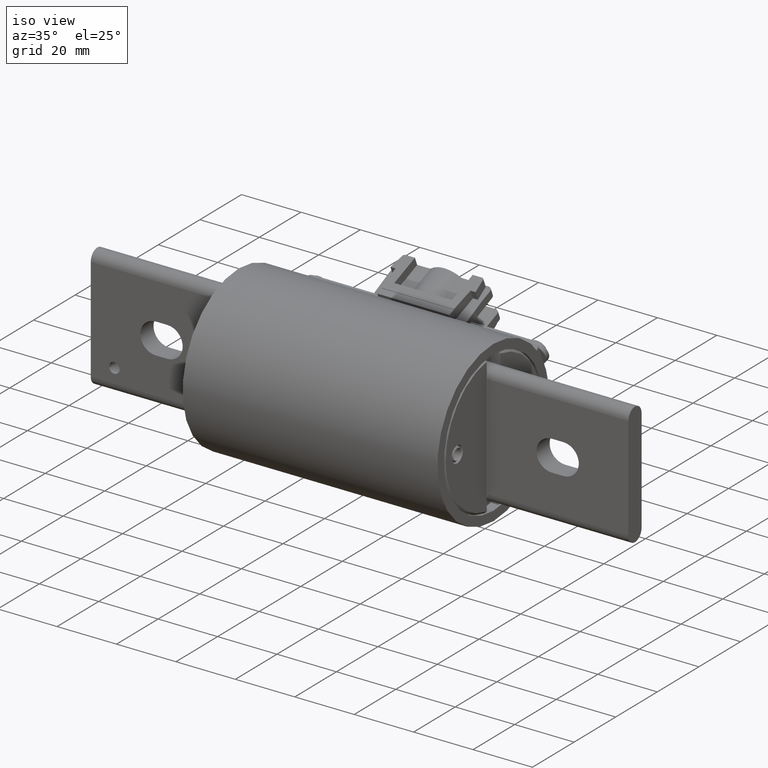
[diagram: clean part render]
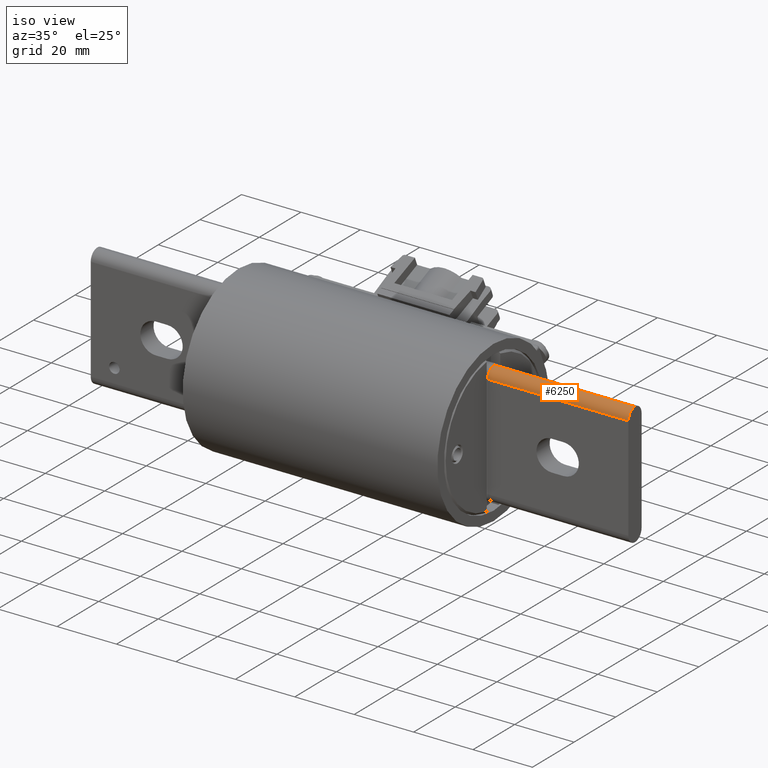
[diagram: same view with one face highlighted and labeled with its STEP entity id]
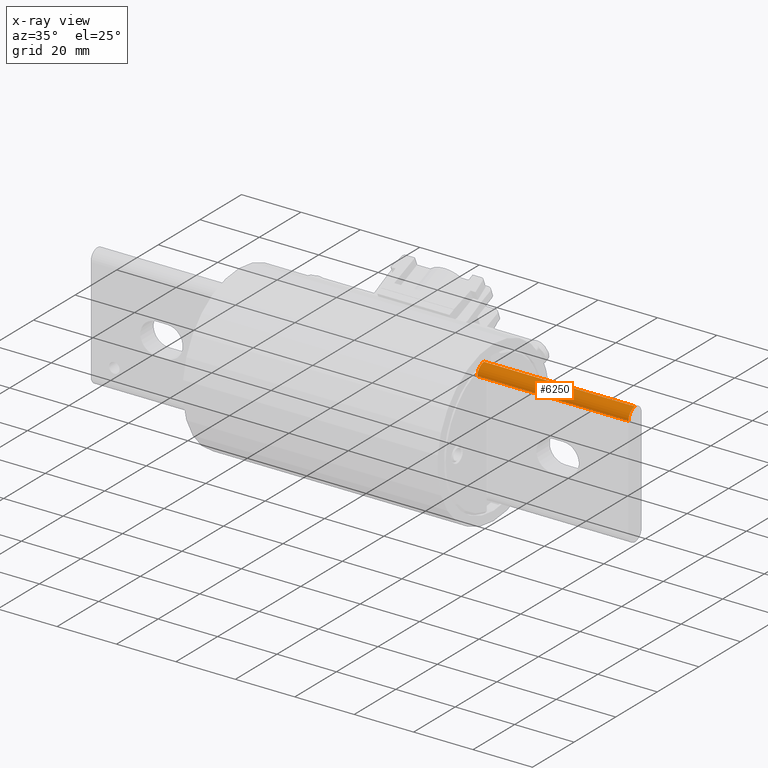
[diagram: x-ray of the same camera — body ghosted, the highlighted face saturated]
A machine part, iso view. The second image highlights one B-rep face of the part: STEP entity #6250.
The next image is the same camera in x-ray: the body ghosted, the highlighted face saturated — about 0% of this face is hidden behind the body in this view.
In plain terms, the highlighted cylindrical surface (edge-blend (fillet) strip) has radius 3.175 mm, axis along (-1, -0, 0).
Its self-contained STEP definition (entity closure, byte-faithful):
#141 = CARTESIAN_POINT ( 'NONE',  ( 1.562500000000000000, -8.101708737256245400E-018, 0.8124999999999998900 ) ) ;
#849 = EDGE_CURVE ( 'NONE', #26013, #26624, #7503, .T. ) ;
#1303 = DIRECTION ( 'NONE',  ( -1.000000000000000000, -6.840047934293958300E-017, 2.255740153831082800E-016 ) ) ;
#4239 = CARTESIAN_POINT ( 'NONE',  ( 3.562500000000000000, 1.322390860176119000E-016, 0.6874999999999994400 ) ) ;
#6250 = ADVANCED_FACE ( 'NONE', ( #39343 ), #17342, .T. ) ;
#7503 = LINE ( 'NONE', #141, #42011 ) ;
#7625 = DIRECTION ( 'NONE',  ( 0.0000000000000000000, -1.000000000000000000, 0.0000000000000000000 ) ) ;
#7947 = ORIENTED_EDGE ( 'NONE', *, *, #10066, .F. ) ;
#8431 = DIRECTION ( 'NONE',  ( -1.000000000000000000, -6.840047934293958300E-017, 2.255740153831082800E-016 ) ) ;
#8981 = CARTESIAN_POINT ( 'NONE',  ( 3.562500000000000000, -0.1249999999999998600, 0.6874999999999994400 ) ) ;
#9771 = CIRCLE ( 'NONE', #28593, 0.1250000000000000000 ) ;
#9800 = CARTESIAN_POINT ( 'NONE',  ( 1.562500000000000000, -8.101708737256245400E-018, 0.8124999999999998900 ) ) ;
#10066 = EDGE_CURVE ( 'NONE', #24221, #26624, #40303, .T. ) ;
#10944 = VERTEX_POINT ( 'NONE', #8981 ) ;
#11129 = AXIS2_PLACEMENT_3D ( 'NONE', #27197, #27150, #27142 ) ;
#12591 = EDGE_LOOP ( 'NONE', ( #7947, #18114, #28678, #38578 ) ) ;
#13608 = LINE ( 'NONE', #38299, #30332 ) ;
#13619 = EDGE_CURVE ( 'NONE', #26013, #10944, #9771, .T. ) ;
#17342 = CYLINDRICAL_SURFACE ( 'NONE', #25953, 0.1250000000000000300 ) ;
#18114 = ORIENTED_EDGE ( 'NONE', *, *, #18501, .F. ) ;
#18501 = EDGE_CURVE ( 'NONE', #10944, #24221, #13608, .T. ) ;
#18787 = DIRECTION ( 'NONE',  ( 0.0000000000000000000, -2.831868855191175000E-017, 1.000000000000000000 ) ) ;
#19896 = CARTESIAN_POINT ( 'NONE',  ( 3.562500000000000000, 1.286992499486229300E-016, 0.8124999999999994400 ) ) ;
#23550 = CARTESIAN_POINT ( 'NONE',  ( 1.562500000000000000, -0.1250000000000000000, 0.6874999999999998900 ) ) ;
#24221 = VERTEX_POINT ( 'NONE', #23550 ) ;
#24371 = CARTESIAN_POINT ( 'NONE',  ( 1.562500000000000000, -4.561872668267262700E-018, 0.6874999999999998900 ) ) ;
#25953 = AXIS2_PLACEMENT_3D ( 'NONE', #24371, #1303, #18787 ) ;
#26013 = VERTEX_POINT ( 'NONE', #19896 ) ;
#26624 = VERTEX_POINT ( 'NONE', #9800 ) ;
#27142 = DIRECTION ( 'NONE',  ( 0.0000000000000000000, 1.000000000000000000, 0.0000000000000000000 ) ) ;
#27150 = DIRECTION ( 'NONE',  ( -1.000000000000000000, -6.840047934293957100E-017, -1.159069838249245700E-016 ) ) ;
#27197 = CARTESIAN_POINT ( 'NONE',  ( 1.562500000000000000, -4.561872668267262700E-018, 0.6874999999999998900 ) ) ;
#27681 = DIRECTION ( 'NONE',  ( 1.000000000000000000, 6.840047934293957100E-017, 1.159069838249245700E-016 ) ) ;
#28593 = AXIS2_PLACEMENT_3D ( 'NONE', #4239, #27681, #7625 ) ;
#28678 = ORIENTED_EDGE ( 'NONE', *, *, #13619, .F. ) ;
#29199 = DIRECTION ( 'NONE',  ( -1.000000000000000000, -6.840047934293958300E-017, 2.255740153831082800E-016 ) ) ;
#30332 = VECTOR ( 'NONE', #8431, 39.37007874015748100 ) ;
#38299 = CARTESIAN_POINT ( 'NONE',  ( 1.562500000000000000, -0.1250000000000000000, 0.6874999999999998900 ) ) ;
#38578 = ORIENTED_EDGE ( 'NONE', *, *, #849, .T. ) ;
#39343 = FACE_OUTER_BOUND ( 'NONE', #12591, .T. ) ;
#40303 = CIRCLE ( 'NONE', #11129, 0.1250000000000000000 ) ;
#42011 = VECTOR ( 'NONE', #29199, 39.37007874015748100 ) ;